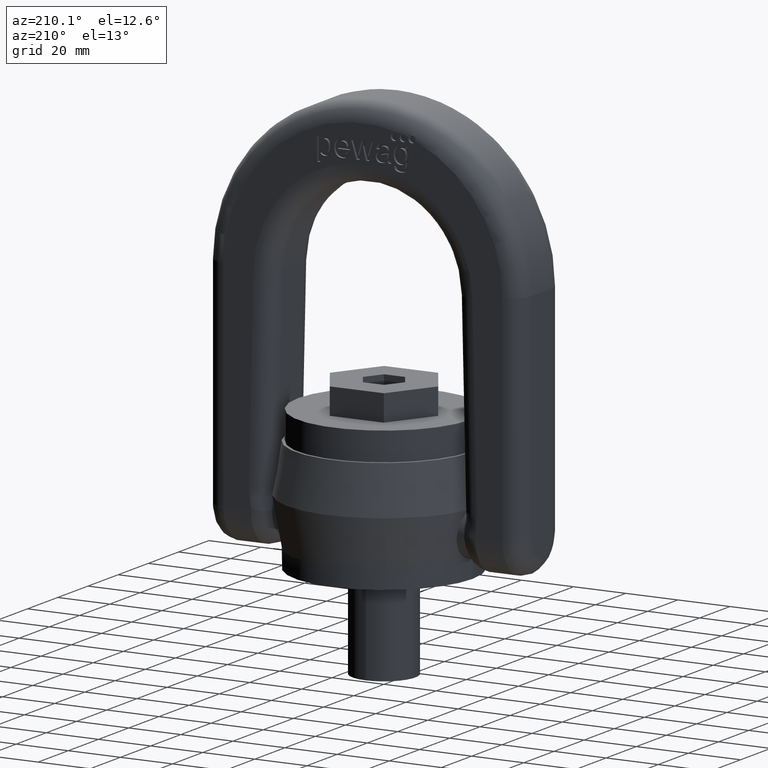
[diagram: clean part render]
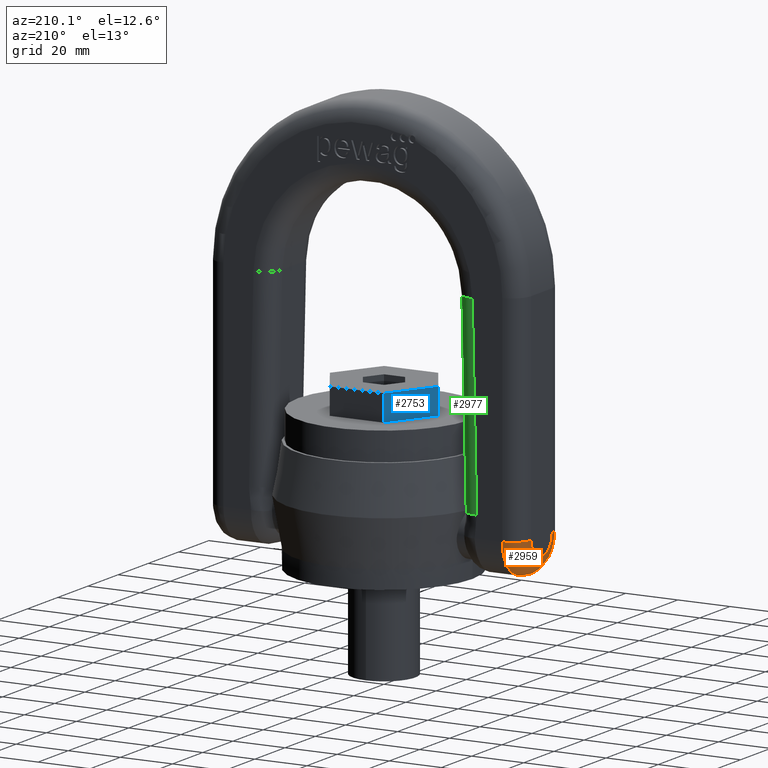
[diagram: same view with three faces highlighted in distinct colors, each labeled with its STEP entity id]
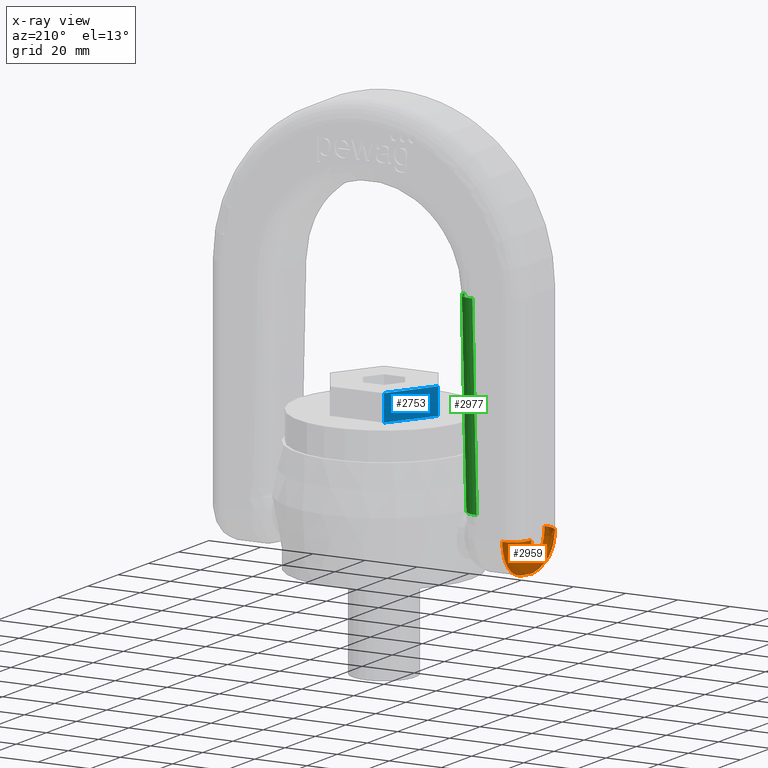
[diagram: x-ray of the same camera — body ghosted, the three highlighted faces saturated]
A machine part, auxiliary view with three faces highlighted in distinct colors.
The next image is the same camera in x-ray (body ghosted, the three faces saturated) — at least one of them is partly hidden behind the body in this view.
Their STEP definitions:

[orange] entity #2959 — the highlighted face is a freeform B-spline surface patch.
#213=(
BOUNDED_SURFACE()
B_SPLINE_SURFACE(3,3,((#9419,#9420,#9421,#9422),(#9423,#9424,#9425,#9426),
(#9427,#9428,#9429,#9430),(#9431,#9432,#9433,#9434)),.UNSPECIFIED.,.F.,
 .F.,.F.)
B_SPLINE_SURFACE_WITH_KNOTS((4,4),(4,4),(0.,1.),(0.,1.),.UNSPECIFIED.)
GEOMETRIC_REPRESENTATION_ITEM()
RATIONAL_B_SPLINE_SURFACE(((1.,0.333333333333333,0.333333333333333,1.),
(0.804737854124365,0.268245951374788,0.268245951374788,0.804737854124365),
(0.804737854124365,0.268245951374788,0.268245951374788,0.804737854124365),
(1.,0.333333333333333,0.333333333333333,1.)))
REPRESENTATION_ITEM('')
SURFACE()
);
#2605=FACE_OUTER_BOUND('',#3319,.T.);
#2959=ADVANCED_FACE('',(#2605),#213,.T.);
#3319=EDGE_LOOP('',(#4455,#4456,#4457,#4458));
#4455=ORIENTED_EDGE('',*,*,#5525,.F.);
#4456=ORIENTED_EDGE('',*,*,#4994,.F.);
#4457=ORIENTED_EDGE('',*,*,#5526,.F.);
#4458=ORIENTED_EDGE('',*,*,#5076,.F.);
#4580=VERTEX_POINT('',#6714);
#4582=VERTEX_POINT('',#6727);
#4662=VERTEX_POINT('',#7051);
#4663=VERTEX_POINT('',#7053);
#4994=EDGE_CURVE('',#4582,#4580,#5554,.T.);
#5076=EDGE_CURVE('',#4662,#4663,#5562,.T.);
#5525=EDGE_CURVE('',#4580,#4662,#5581,.T.);
#5526=EDGE_CURVE('',#4663,#4582,#5582,.T.);
#5554=CIRCLE('',#5635,13.9999999999999);
#5562=CIRCLE('',#5645,6.99999999999993);
#5581=CIRCLE('',#5776,7.);
#5582=CIRCLE('',#5777,7.);
#5635=AXIS2_PLACEMENT_3D('',#6728,#5916,#5917);
#5645=AXIS2_PLACEMENT_3D('',#7052,#5974,#5975);
#5776=AXIS2_PLACEMENT_3D('',#9417,#6530,#6531);
#5777=AXIS2_PLACEMENT_3D('',#9418,#6532,#6533);
#5916=DIRECTION('',(1.,0.,-9.29954853100969E-16));
#5917=DIRECTION('',(-9.91270557701038E-16,0.,-1.));
#5974=DIRECTION('',(-1.,0.,9.29954853100969E-16));
#5975=DIRECTION('',(-9.91270557701043E-16,0.,-1.));
#6530=DIRECTION('',(1.48690583655155E-15,-4.95635278850518E-16,1.));
#6531=DIRECTION('',(1.,0.,-1.48690583655155E-15));
#6532=DIRECTION('',(9.91270557701033E-16,4.95635278850516E-16,1.));
#6533=DIRECTION('',(1.,0.,-9.91270557701033E-16));
#6714=CARTESIAN_POINT('',(-53.5,14.0000000000001,17.5000000000001));
#6727=CARTESIAN_POINT('',(-53.5,-14.,17.5000000000001));
#6728=CARTESIAN_POINT('',(-53.5,6.28944784223988E-14,17.5000000000001));
#7051=CARTESIAN_POINT('',(-60.5,6.99999999999999,17.5000000000001));
#7052=CARTESIAN_POINT('',(-60.5,6.28944784223988E-14,17.5000000000001));
#7053=CARTESIAN_POINT('',(-60.5,-7.,17.5000000000001));
#9417=CARTESIAN_POINT('',(-53.5,6.99999999999999,17.5000000000001));
#9418=CARTESIAN_POINT('',(-53.5,-6.99999999999987,17.5000000000001));
#9419=CARTESIAN_POINT('',(-53.5,-13.9999999999999,17.5000000000001));
#9420=CARTESIAN_POINT('',(-53.5000000000001,-13.9999999999999,-10.4999999999998));
#9421=CARTESIAN_POINT('',(-53.5000000000001,14.,-10.4999999999998));
#9422=CARTESIAN_POINT('',(-53.5,14.,17.5000000000001));
#9423=CARTESIAN_POINT('',(-57.6005050633884,-13.9999999999999,17.5000000000001));
#9424=CARTESIAN_POINT('',(-57.6005050633884,-13.9999999999999,-10.4999999999998));
#9425=CARTESIAN_POINT('',(-57.6005050633884,14.,-10.4999999999998));
#9426=CARTESIAN_POINT('',(-57.6005050633884,14.,17.5000000000001));
#9427=CARTESIAN_POINT('',(-60.5000000000001,-11.1005050633882,17.5000000000001));
#9428=CARTESIAN_POINT('',(-60.5000000000001,-11.1005050633882,-4.70101012677647));
#9429=CARTESIAN_POINT('',(-60.5000000000001,11.1005050633884,-4.70101012677646));
#9430=CARTESIAN_POINT('',(-60.5000000000001,11.1005050633883,17.5000000000001));
#9431=CARTESIAN_POINT('',(-60.5000000000001,-6.99999999999987,17.5000000000001));
#9432=CARTESIAN_POINT('',(-60.5000000000001,-6.99999999999987,3.50000000000021));
#9433=CARTESIAN_POINT('',(-60.5000000000001,7.,3.50000000000022));
#9434=CARTESIAN_POINT('',(-60.5000000000001,6.99999999999999,17.5000000000001));

[blue] entity #2753 — the highlighted planar face has unit normal (0.866, -0.5, 0).
#1756=LINE('',#6622,#2038);
#1763=LINE('',#6636,#2045);
#1770=LINE('',#6650,#2052);
#1772=LINE('',#6654,#2054);
#2038=VECTOR('',#5843,1.);
#2045=VECTOR('',#5852,1.);
#2052=VECTOR('',#5867,1.);
#2054=VECTOR('',#5871,1.);
#2417=FACE_OUTER_BOUND('',#3085,.T.);
#2634=PLANE('',#5624);
#2753=ADVANCED_FACE('',(#2417),#2634,.F.);
#3085=EDGE_LOOP('',(#3381,#3382,#3383,#3384));
#3381=ORIENTED_EDGE('',*,*,#4952,.T.);
#3382=ORIENTED_EDGE('',*,*,#4959,.F.);
#3383=ORIENTED_EDGE('',*,*,#4968,.F.);
#3384=ORIENTED_EDGE('',*,*,#4966,.T.);
#4551=VERTEX_POINT('',#6620);
#4553=VERTEX_POINT('',#6623);
#4558=VERTEX_POINT('',#6635);
#4562=VERTEX_POINT('',#6651);
#4952=EDGE_CURVE('',#4553,#4551,#1756,.T.);
#4959=EDGE_CURVE('',#4558,#4551,#1763,.T.);
#4966=EDGE_CURVE('',#4562,#4553,#1770,.T.);
#4968=EDGE_CURVE('',#4562,#4558,#1772,.T.);
#5624=AXIS2_PLACEMENT_3D('',#6655,#5872,#5873);
#5843=DIRECTION('',(-0.5,-0.866025403784439,0.));
#5852=DIRECTION('',(0.,0.,-1.));
#5867=DIRECTION('',(0.,0.,-1.));
#5871=DIRECTION('',(-0.5,-0.866025403784439,0.));
#5872=DIRECTION('',(0.866025403784439,-0.5,0.));
#5873=DIRECTION('',(0.5,0.866025403784439,0.));
#6620=CARTESIAN_POINT('',(-20.7846096908265,0.,54.));
#6622=CARTESIAN_POINT('',(-10.3923048454133,18.,54.));
#6623=CARTESIAN_POINT('',(-10.3923048454133,18.,54.));
#6635=CARTESIAN_POINT('',(-20.7846096908265,0.,64.));
#6636=CARTESIAN_POINT('',(-20.7846096908265,0.,64.));
#6650=CARTESIAN_POINT('',(-10.3923048454133,18.,64.));
#6651=CARTESIAN_POINT('',(-10.3923048454133,18.,64.));
#6654=CARTESIAN_POINT('',(-10.3923048454133,18.,64.));
#6655=CARTESIAN_POINT('',(-10.3923048454133,18.,64.));

[green] entity #2977 — the highlighted cylindrical surface (edge-blend (fillet) strip) has radius 7 mm, axis along (-0.0231, 0, -0.9997).
#1834=LINE('',#7059,#2116);
#1933=LINE('',#8225,#2260);
#2116=VECTOR('',#5981,1.);
#2260=VECTOR('',#6253,1.);
#2623=FACE_OUTER_BOUND('',#3337,.T.);
#2977=ADVANCED_FACE('',(#2623),#3000,.T.);
#3000=CYLINDRICAL_SURFACE('',#5806,7.);
#3337=EDGE_LOOP('',(#4535,#4536,#4537,#4538));
#4535=ORIENTED_EDGE('',*,*,#5542,.T.);
#4536=ORIENTED_EDGE('',*,*,#5298,.F.);
#4537=ORIENTED_EDGE('',*,*,#5544,.F.);
#4538=ORIENTED_EDGE('',*,*,#5079,.F.);
#4664=VERTEX_POINT('',#7057);
#4666=VERTEX_POINT('',#7060);
#4799=VERTEX_POINT('',#8224);
#4800=VERTEX_POINT('',#8226);
#5079=EDGE_CURVE('',#4664,#4666,#1834,.T.);
#5298=EDGE_CURVE('',#4799,#4800,#1933,.T.);
#5542=EDGE_CURVE('',#4664,#4800,#5598,.T.);
#5544=EDGE_CURVE('',#4666,#4799,#5600,.T.);
#5598=CIRCLE('',#5802,7.);
#5600=CIRCLE('',#5805,7.);
#5802=AXIS2_PLACEMENT_3D('',#9637,#6582,#6583);
#5805=AXIS2_PLACEMENT_3D('',#9658,#6588,#6589);
#5806=AXIS2_PLACEMENT_3D('',#9659,#6590,#6591);
#5981=DIRECTION('',(0.0230857815721755,-5.40879253366108E-17,0.999733487830233));
#6253=DIRECTION('',(-0.0230857815721755,5.40879253366108E-17,-0.999733487830233));
#6582=DIRECTION('',(0.0230857815720366,-5.40879253362854E-17,0.999733487830236));
#6583=DIRECTION('',(-0.999733487830236,0.,0.0230857815720368));
#6588=DIRECTION('',(0.0230857815721761,-4.57685111480304E-17,0.999733487830232));
#6589=DIRECTION('',(0.999733487830232,0.,-0.0230857815721761));
#6590=DIRECTION('',(-0.0230857815721755,5.40879253366108E-17,-0.999733487830233));
#6591=DIRECTION('',(-0.999733487830232,0.,0.0230857815721761));
#7057=CARTESIAN_POINT('',(-36.6875082648093,7.0000000000001,25.3262379212492));
#7059=CARTESIAN_POINT('',(-37.1915183508232,7.0000000000001,3.5));
#7060=CARTESIAN_POINT('',(-34.9906720740581,7.0000000000001,98.8080023550261));
#8224=CARTESIAN_POINT('',(-41.9888064888698,14.0000000000001,98.9696028260314));
#8225=CARTESIAN_POINT('',(-41.9888064888698,14.0000000000001,98.9696028260314));
#8226=CARTESIAN_POINT('',(-43.6856426796209,14.0000000000001,25.4878383922544));
#9637=CARTESIAN_POINT('',(-43.6856426796216,7.0000000000001,25.4878383922527));
#9658=CARTESIAN_POINT('',(-41.9888064888698,7.0000000000001,98.9696028260314));
#9659=CARTESIAN_POINT('',(-41.9888064888698,7.0000000000001,98.9696028260314));